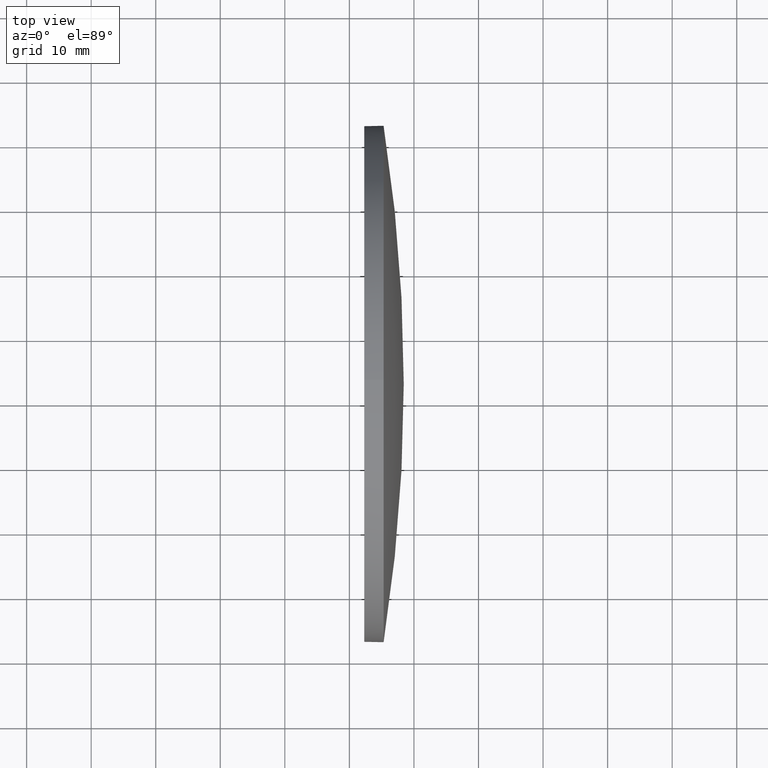
[diagram: clean part render]
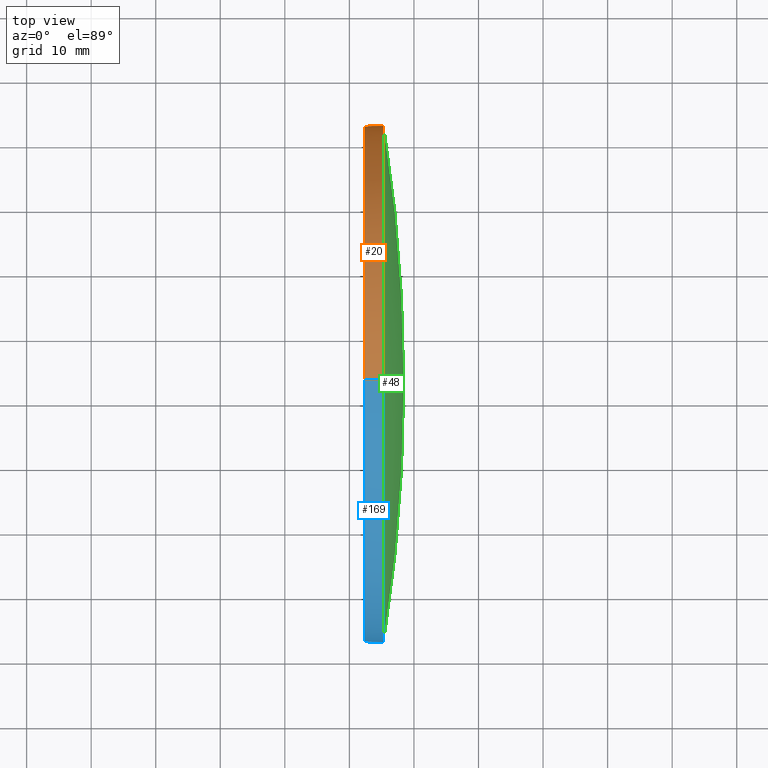
[diagram: same view with three faces highlighted in distinct colors, each labeled with its STEP entity id]
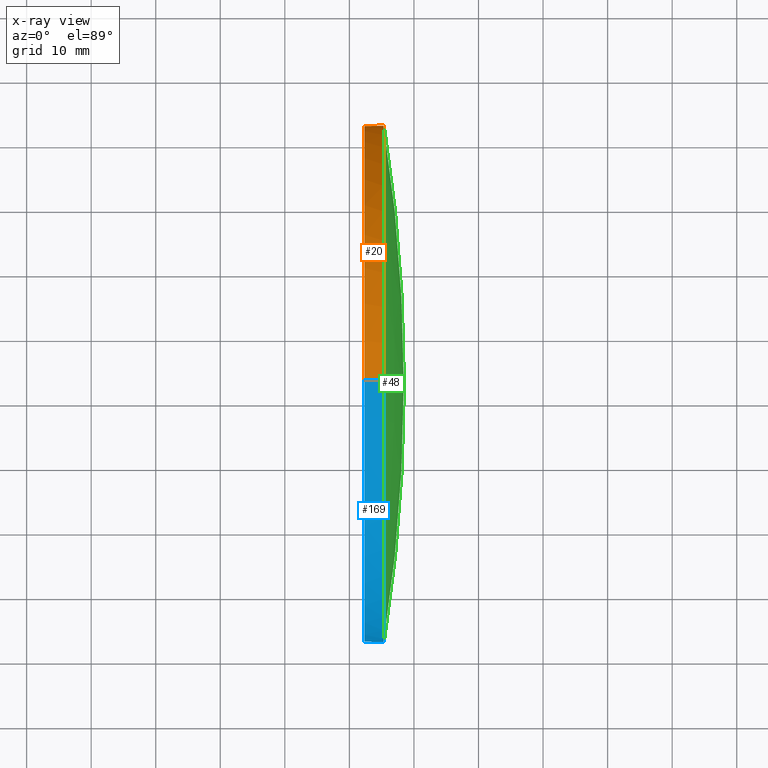
[diagram: x-ray of the same camera — body ghosted, the three highlighted faces saturated]
A machine part, top view with three faces highlighted in distinct colors.
The next image is the same camera in x-ray (body ghosted, the three faces saturated) — at least one of them is partly hidden behind the body in this view.
Their STEP definitions:

[orange] entity #20 — the highlighted cylindrical surface (partial cylindrical patch) has radius 40 mm, axis along (-1, -0, -0).
#2 = DIRECTION ( 'NONE',  ( -1.000000000000000000, -0.0000000000000000000, -0.0000000000000000000 ) ) ;
#4 = VERTEX_POINT ( 'NONE', #88 ) ;
#9 = CARTESIAN_POINT ( 'NONE',  ( 462.3008761382651500, 32.67751769391771400, 0.0000000000000000000 ) ) ;
#10 = LINE ( 'NONE', #117, #70 ) ;
#15 = DIRECTION ( 'NONE',  ( -1.000000000000000000, -0.0000000000000000000, -0.0000000000000000000 ) ) ;
#20 = ADVANCED_FACE ( 'NONE', ( #125 ), #54, .T. ) ;
#22 = DIRECTION ( 'NONE',  ( 0.0000000000000000000, 0.0000000000000000000, 1.000000000000000000 ) ) ;
#26 = EDGE_CURVE ( 'NONE', #92, #4, #119, .T. ) ;
#31 = CARTESIAN_POINT ( 'NONE',  ( 462.3008761382651500, 32.67751769391771400, 40.00000000000000000 ) ) ;
#41 = VECTOR ( 'NONE', #15, 1000.000000000000000 ) ;
#43 = CARTESIAN_POINT ( 'NONE',  ( 465.3008761382651500, 32.67751769391772100, -40.00000000000000000 ) ) ;
#50 = CIRCLE ( 'NONE', #156, 40.00000000000000000 ) ;
#54 = CYLINDRICAL_SURFACE ( 'NONE', #114, 40.00000000000000000 ) ;
#59 = CIRCLE ( 'NONE', #162, 40.00000000000000000 ) ;
#65 = DIRECTION ( 'NONE',  ( 0.0000000000000000000, 0.0000000000000000000, 1.000000000000000000 ) ) ;
#66 = VERTEX_POINT ( 'NONE', #128 ) ;
#70 = VECTOR ( 'NONE', #103, 1000.000000000000000 ) ;
#76 = CARTESIAN_POINT ( 'NONE',  ( 465.3008761382651500, 32.67751769391771400, 0.0000000000000000000 ) ) ;
#79 = EDGE_CURVE ( 'NONE', #123, #66, #50, .T. ) ;
#81 = VERTEX_POINT ( 'NONE', #43 ) ;
#82 = EDGE_CURVE ( 'NONE', #123, #92, #10, .T. ) ;
#88 = CARTESIAN_POINT ( 'NONE',  ( 462.3008761382651500, 32.67751769391772100, -40.00000000000000000 ) ) ;
#92 = VERTEX_POINT ( 'NONE', #31 ) ;
#95 = CARTESIAN_POINT ( 'NONE',  ( 443.4758984606920600, 32.67751769391772100, -40.00000000000000000 ) ) ;
#102 = ORIENTED_EDGE ( 'NONE', *, *, #138, .T. ) ;
#103 = DIRECTION ( 'NONE',  ( -1.000000000000000000, -0.0000000000000000000, -0.0000000000000000000 ) ) ;
#107 = DIRECTION ( 'NONE',  ( 0.0000000000000000000, 0.0000000000000000000, 1.000000000000000000 ) ) ;
#109 = DIRECTION ( 'NONE',  ( -1.000000000000000000, -0.0000000000000000000, -0.0000000000000000000 ) ) ;
#111 = CARTESIAN_POINT ( 'NONE',  ( 465.3008761382651500, 32.67751769391771400, 0.0000000000000000000 ) ) ;
#114 = AXIS2_PLACEMENT_3D ( 'NONE', #183, #157, #107 ) ;
#116 = AXIS2_PLACEMENT_3D ( 'NONE', #9, #139, #22 ) ;
#117 = CARTESIAN_POINT ( 'NONE',  ( 443.4758984606920600, 32.67751769391771400, 40.00000000000000000 ) ) ;
#119 = CIRCLE ( 'NONE', #116, 40.00000000000000000 ) ;
#123 = VERTEX_POINT ( 'NONE', #171 ) ;
#125 = FACE_OUTER_BOUND ( 'NONE', #126, .T. ) ;
#126 = EDGE_LOOP ( 'NONE', ( #102, #165, #161, #147, #184 ) ) ;
#128 = CARTESIAN_POINT ( 'NONE',  ( 465.3008761382652100, 72.67751769391753700, 0.0000000000000000000 ) ) ;
#129 = EDGE_CURVE ( 'NONE', #81, #4, #153, .T. ) ;
#138 = EDGE_CURVE ( 'NONE', #66, #81, #59, .T. ) ;
#139 = DIRECTION ( 'NONE',  ( -1.000000000000000000, -0.0000000000000000000, -0.0000000000000000000 ) ) ;
#145 = DIRECTION ( 'NONE',  ( 0.0000000000000000000, 0.0000000000000000000, 1.000000000000000000 ) ) ;
#147 = ORIENTED_EDGE ( 'NONE', *, *, #82, .F. ) ;
#153 = LINE ( 'NONE', #95, #41 ) ;
#156 = AXIS2_PLACEMENT_3D ( 'NONE', #111, #109, #65 ) ;
#157 = DIRECTION ( 'NONE',  ( -1.000000000000000000, -0.0000000000000000000, -0.0000000000000000000 ) ) ;
#161 = ORIENTED_EDGE ( 'NONE', *, *, #26, .F. ) ;
#162 = AXIS2_PLACEMENT_3D ( 'NONE', #76, #2, #145 ) ;
#165 = ORIENTED_EDGE ( 'NONE', *, *, #129, .T. ) ;
#171 = CARTESIAN_POINT ( 'NONE',  ( 465.3008761382651500, 32.67751769391771400, 40.00000000000000000 ) ) ;
#183 = CARTESIAN_POINT ( 'NONE',  ( 443.4758984606920600, 32.67751769391771400, 0.0000000000000000000 ) ) ;
#184 = ORIENTED_EDGE ( 'NONE', *, *, #79, .T. ) ;

[blue] entity #169 — the highlighted cylindrical surface (partial cylindrical patch) has radius 40 mm, axis along (-1, -0, -0).
#1 = CARTESIAN_POINT ( 'NONE',  ( 443.4758984606920600, 32.67751769391771400, 0.0000000000000000000 ) ) ;
#4 = VERTEX_POINT ( 'NONE', #88 ) ;
#6 = VERTEX_POINT ( 'NONE', #179 ) ;
#10 = LINE ( 'NONE', #117, #70 ) ;
#13 = CIRCLE ( 'NONE', #140, 40.00000000000000000 ) ;
#15 = DIRECTION ( 'NONE',  ( -1.000000000000000000, -0.0000000000000000000, -0.0000000000000000000 ) ) ;
#16 = ORIENTED_EDGE ( 'NONE', *, *, #129, .F. ) ;
#18 = EDGE_CURVE ( 'NONE', #81, #6, #46, .T. ) ;
#23 = DIRECTION ( 'NONE',  ( -1.000000000000000000, -0.0000000000000000000, -0.0000000000000000000 ) ) ;
#24 = DIRECTION ( 'NONE',  ( -1.000000000000000000, -0.0000000000000000000, -0.0000000000000000000 ) ) ;
#31 = CARTESIAN_POINT ( 'NONE',  ( 462.3008761382651500, 32.67751769391771400, 40.00000000000000000 ) ) ;
#41 = VECTOR ( 'NONE', #15, 1000.000000000000000 ) ;
#42 = AXIS2_PLACEMENT_3D ( 'NONE', #1, #77, #142 ) ;
#43 = CARTESIAN_POINT ( 'NONE',  ( 465.3008761382651500, 32.67751769391772100, -40.00000000000000000 ) ) ;
#46 = CIRCLE ( 'NONE', #106, 40.00000000000000000 ) ;
#51 = EDGE_CURVE ( 'NONE', #4, #92, #13, .T. ) ;
#56 = DIRECTION ( 'NONE',  ( 0.0000000000000000000, 0.0000000000000000000, 1.000000000000000000 ) ) ;
#58 = DIRECTION ( 'NONE',  ( 0.0000000000000000000, 0.0000000000000000000, 1.000000000000000000 ) ) ;
#67 = ORIENTED_EDGE ( 'NONE', *, *, #91, .T. ) ;
#69 = CARTESIAN_POINT ( 'NONE',  ( 462.3008761382651500, 32.67751769391771400, 0.0000000000000000000 ) ) ;
#70 = VECTOR ( 'NONE', #103, 1000.000000000000000 ) ;
#77 = DIRECTION ( 'NONE',  ( -1.000000000000000000, -0.0000000000000000000, -0.0000000000000000000 ) ) ;
#78 = CIRCLE ( 'NONE', #143, 40.00000000000000000 ) ;
#81 = VERTEX_POINT ( 'NONE', #43 ) ;
#82 = EDGE_CURVE ( 'NONE', #123, #92, #10, .T. ) ;
#83 = CYLINDRICAL_SURFACE ( 'NONE', #42, 40.00000000000000000 ) ;
#86 = FACE_OUTER_BOUND ( 'NONE', #121, .T. ) ;
#88 = CARTESIAN_POINT ( 'NONE',  ( 462.3008761382651500, 32.67751769391772100, -40.00000000000000000 ) ) ;
#91 = EDGE_CURVE ( 'NONE', #6, #123, #78, .T. ) ;
#92 = VERTEX_POINT ( 'NONE', #31 ) ;
#95 = CARTESIAN_POINT ( 'NONE',  ( 443.4758984606920600, 32.67751769391772100, -40.00000000000000000 ) ) ;
#96 = DIRECTION ( 'NONE',  ( 0.0000000000000000000, 0.0000000000000000000, 1.000000000000000000 ) ) ;
#103 = DIRECTION ( 'NONE',  ( -1.000000000000000000, -0.0000000000000000000, -0.0000000000000000000 ) ) ;
#106 = AXIS2_PLACEMENT_3D ( 'NONE', #163, #23, #56 ) ;
#117 = CARTESIAN_POINT ( 'NONE',  ( 443.4758984606920600, 32.67751769391771400, 40.00000000000000000 ) ) ;
#121 = EDGE_LOOP ( 'NONE', ( #16, #127, #67, #150, #132 ) ) ;
#123 = VERTEX_POINT ( 'NONE', #171 ) ;
#127 = ORIENTED_EDGE ( 'NONE', *, *, #18, .T. ) ;
#129 = EDGE_CURVE ( 'NONE', #81, #4, #153, .T. ) ;
#132 = ORIENTED_EDGE ( 'NONE', *, *, #51, .F. ) ;
#140 = AXIS2_PLACEMENT_3D ( 'NONE', #69, #24, #58 ) ;
#142 = DIRECTION ( 'NONE',  ( 0.0000000000000000000, 0.0000000000000000000, 1.000000000000000000 ) ) ;
#143 = AXIS2_PLACEMENT_3D ( 'NONE', #167, #159, #96 ) ;
#150 = ORIENTED_EDGE ( 'NONE', *, *, #82, .T. ) ;
#153 = LINE ( 'NONE', #95, #41 ) ;
#159 = DIRECTION ( 'NONE',  ( -1.000000000000000000, -0.0000000000000000000, -0.0000000000000000000 ) ) ;
#163 = CARTESIAN_POINT ( 'NONE',  ( 465.3008761382651500, 32.67751769391771400, 0.0000000000000000000 ) ) ;
#167 = CARTESIAN_POINT ( 'NONE',  ( 465.3008761382651500, 32.67751769391771400, 0.0000000000000000000 ) ) ;
#169 = ADVANCED_FACE ( 'NONE', ( #86 ), #83, .T. ) ;
#171 = CARTESIAN_POINT ( 'NONE',  ( 465.3008761382651500, 32.67751769391771400, 40.00000000000000000 ) ) ;
#179 = CARTESIAN_POINT ( 'NONE',  ( 465.3008761382652100, -7.322482306082179100, -4.898587196589389400E-015 ) ) ;

[green] entity #48 — the highlighted spherical surface has radius 257.97 mm.
#6 = VERTEX_POINT ( 'NONE', #179 ) ;
#12 = CARTESIAN_POINT ( 'NONE',  ( 210.4506197280091400, 32.67751769391763600, 0.0000000000000000000 ) ) ;
#28 = ORIENTED_EDGE ( 'NONE', *, *, #79, .F. ) ;
#32 = CARTESIAN_POINT ( 'NONE',  ( 210.4506197280091400, 32.67751769391763600, 0.0000000000000000000 ) ) ;
#37 = ORIENTED_EDGE ( 'NONE', *, *, #39, .T. ) ;
#39 = EDGE_CURVE ( 'NONE', #151, #66, #177, .T. ) ;
#48 = ADVANCED_FACE ( 'NONE', ( #135 ), #178, .T. ) ;
#49 = CARTESIAN_POINT ( 'NONE',  ( 468.4208761382651000, 32.67751769391765000, 0.0000000000000000000 ) ) ;
#50 = CIRCLE ( 'NONE', #156, 40.00000000000000000 ) ;
#65 = DIRECTION ( 'NONE',  ( 0.0000000000000000000, 0.0000000000000000000, 1.000000000000000000 ) ) ;
#66 = VERTEX_POINT ( 'NONE', #128 ) ;
#68 = CARTESIAN_POINT ( 'NONE',  ( 210.4506197280091400, 32.67751769391763600, 0.0000000000000000000 ) ) ;
#74 = ORIENTED_EDGE ( 'NONE', *, *, #91, .F. ) ;
#75 = DIRECTION ( 'NONE',  ( 0.0000000000000000000, 1.224646799147353200E-016, -1.000000000000000000 ) ) ;
#78 = CIRCLE ( 'NONE', #143, 40.00000000000000000 ) ;
#79 = EDGE_CURVE ( 'NONE', #123, #66, #50, .T. ) ;
#85 = DIRECTION ( 'NONE',  ( 0.0000000000000000000, 1.000000000000000000, 0.0000000000000000000 ) ) ;
#87 = DIRECTION ( 'NONE',  ( 1.000000000000000000, 0.0000000000000000000, 0.0000000000000000000 ) ) ;
#91 = EDGE_CURVE ( 'NONE', #6, #123, #78, .T. ) ;
#96 = DIRECTION ( 'NONE',  ( 0.0000000000000000000, 0.0000000000000000000, 1.000000000000000000 ) ) ;
#104 = DIRECTION ( 'NONE',  ( -0.0000000000000000000, 0.0000000000000000000, -1.000000000000000000 ) ) ;
#105 = EDGE_CURVE ( 'NONE', #151, #6, #160, .T. ) ;
#109 = DIRECTION ( 'NONE',  ( -1.000000000000000000, -0.0000000000000000000, -0.0000000000000000000 ) ) ;
#111 = CARTESIAN_POINT ( 'NONE',  ( 465.3008761382651500, 32.67751769391771400, 0.0000000000000000000 ) ) ;
#123 = VERTEX_POINT ( 'NONE', #171 ) ;
#128 = CARTESIAN_POINT ( 'NONE',  ( 465.3008761382652100, 72.67751769391753700, 0.0000000000000000000 ) ) ;
#134 = DIRECTION ( 'NONE',  ( 0.0000000000000000000, 1.000000000000000000, 1.224646799147353200E-016 ) ) ;
#135 = FACE_OUTER_BOUND ( 'NONE', #181, .T. ) ;
#136 = AXIS2_PLACEMENT_3D ( 'NONE', #12, #164, #87 ) ;
#143 = AXIS2_PLACEMENT_3D ( 'NONE', #167, #159, #96 ) ;
#148 = AXIS2_PLACEMENT_3D ( 'NONE', #68, #104, #85 ) ;
#151 = VERTEX_POINT ( 'NONE', #49 ) ;
#152 = AXIS2_PLACEMENT_3D ( 'NONE', #32, #75, #134 ) ;
#156 = AXIS2_PLACEMENT_3D ( 'NONE', #111, #109, #65 ) ;
#158 = ORIENTED_EDGE ( 'NONE', *, *, #105, .F. ) ;
#159 = DIRECTION ( 'NONE',  ( -1.000000000000000000, -0.0000000000000000000, -0.0000000000000000000 ) ) ;
#160 = CIRCLE ( 'NONE', #152, 257.9702564102560100 ) ;
#164 = DIRECTION ( 'NONE',  ( -0.0000000000000000000, 0.0000000000000000000, 1.000000000000000000 ) ) ;
#167 = CARTESIAN_POINT ( 'NONE',  ( 465.3008761382651500, 32.67751769391771400, 0.0000000000000000000 ) ) ;
#171 = CARTESIAN_POINT ( 'NONE',  ( 465.3008761382651500, 32.67751769391771400, 40.00000000000000000 ) ) ;
#177 = CIRCLE ( 'NONE', #136, 257.9702564102559600 ) ;
#178 = SPHERICAL_SURFACE ( 'NONE', #148, 257.9702564102560100 ) ;
#179 = CARTESIAN_POINT ( 'NONE',  ( 465.3008761382652100, -7.322482306082179100, -4.898587196589389400E-015 ) ) ;
#181 = EDGE_LOOP ( 'NONE', ( #158, #37, #28, #74 ) ) ;